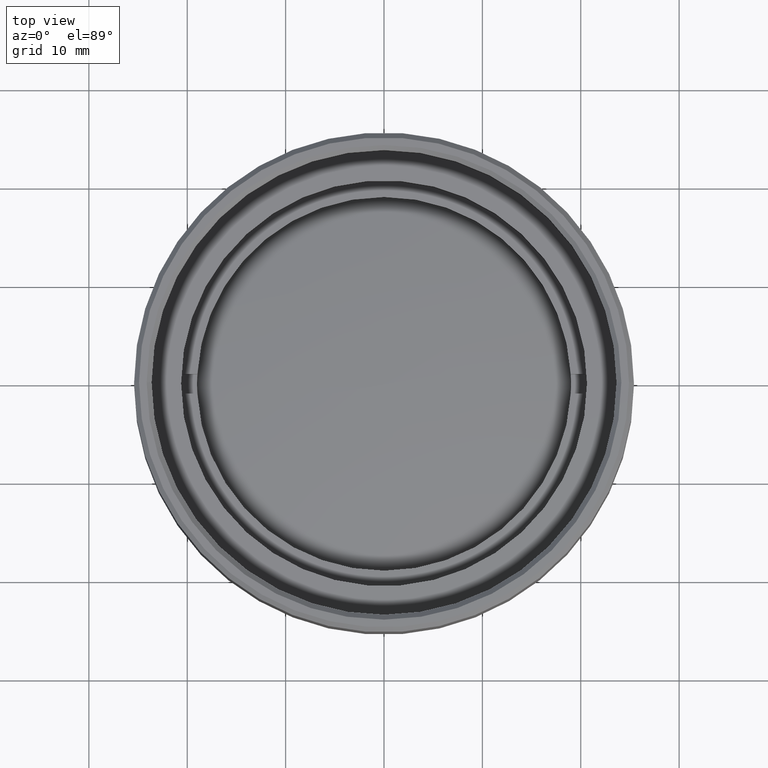
[diagram: clean part render]
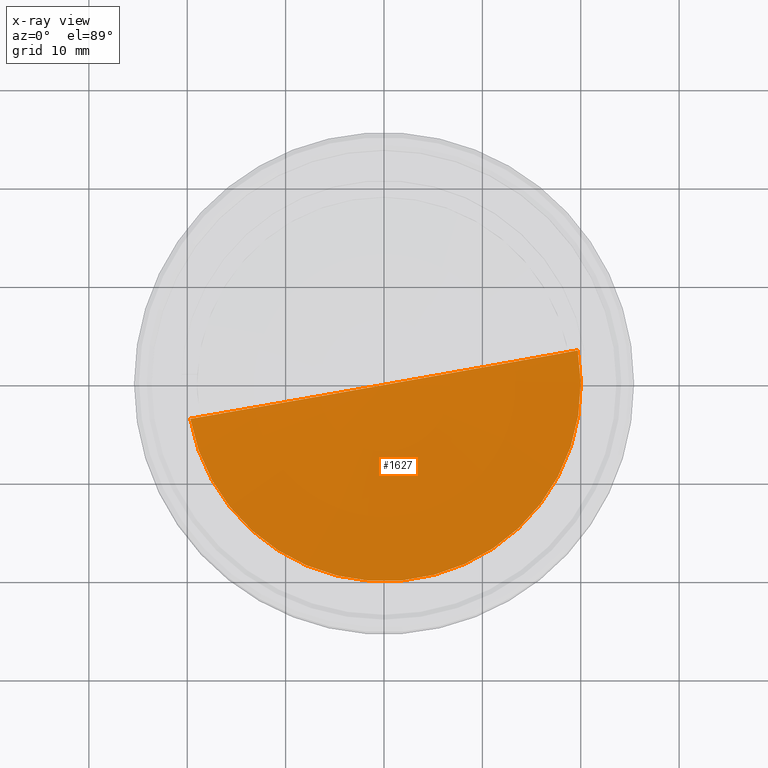
[diagram: x-ray — body ghosted, one internal face saturated and labeled with its STEP entity id]
A machine part, top view, then the same camera in x-ray: the body is ghosted and one INTERNAL B-rep face — a face not visible from any outside direction — is saturated and labeled: STEP entity #1627.
In plain terms, the highlighted spherical surface has radius 101.67 mm.
Its self-contained STEP definition (entity closure, byte-faithful):
#94 = FACE_OUTER_BOUND ( 'NONE', #1095, .T. ) ;
#101 = ORIENTED_EDGE ( 'NONE', *, *, #725, .T. ) ;
#294 = DIRECTION ( 'NONE',  ( -1.000000000000000000, -1.224646799147351975E-16, 0.000000000000000000 ) ) ;
#313 = AXIS2_PLACEMENT_3D ( 'NONE', #1280, #686, #395 ) ;
#365 = DIRECTION ( 'NONE',  ( 0.000000000000000000, -0.000000000000000000, 1.000000000000000000 ) ) ;
#395 = DIRECTION ( 'NONE',  ( -1.000000000000000000, 0.000000000000000000, -4.336808689942017736E-17 ) ) ;
#410 = CARTESIAN_POINT ( 'NONE',  ( 0.000000000000000000, 0.000000000000000000, 96.53000000000000114 ) ) ;
#432 = CARTESIAN_POINT ( 'NONE',  ( 0.000000000000000000, 0.000000000000000000, 96.53000000000000114 ) ) ;
#442 = EDGE_CURVE ( 'NONE', #1583, #1861, #1580, .T. ) ;
#564 = ORIENTED_EDGE ( 'NONE', *, *, #442, .F. ) ;
#686 = DIRECTION ( 'NONE',  ( 4.336808689942014655E-17, 0.000000000000000000, -1.000000000000000000 ) ) ;
#725 = EDGE_CURVE ( 'NONE', #1583, #1861, #1120, .T. ) ;
#728 = AXIS2_PLACEMENT_3D ( 'NONE', #432, #1624, #294 ) ;
#1095 = EDGE_LOOP ( 'NONE', ( #564, #101 ) ) ;
#1101 = DIRECTION ( 'NONE',  ( -1.000000000000000000, 0.000000000000000000, 0.000000000000000000 ) ) ;
#1107 = CARTESIAN_POINT ( 'NONE',  ( -20.00000000000000000, 0.000000000000000000, -3.153443459784234904 ) ) ;
#1120 = CIRCLE ( 'NONE', #313, 20.00000000000000000 ) ;
#1280 = CARTESIAN_POINT ( 'NONE',  ( 1.202133677608382093E-16, 0.000000000000000000, -3.153443459784239788 ) ) ;
#1336 = AXIS2_PLACEMENT_3D ( 'NONE', #410, #365, #1101 ) ;
#1580 = CIRCLE ( 'NONE', #728, 101.6700000000000017 ) ;
#1583 = VERTEX_POINT ( 'NONE', #1707 ) ;
#1624 = DIRECTION ( 'NONE',  ( -1.224646799147351975E-16, 1.000000000000000000, -4.668512942138079483E-33 ) ) ;
#1627 = ADVANCED_FACE ( 'NONE', ( #94 ), #1741, .T. ) ;
#1707 = CARTESIAN_POINT ( 'NONE',  ( 20.00000000000000000, 2.449293598294709668E-15, -3.153443459784234904 ) ) ;
#1741 = SPHERICAL_SURFACE ( 'NONE', #1336, 101.6700000000000017 ) ;
#1861 = VERTEX_POINT ( 'NONE', #1107 ) ;